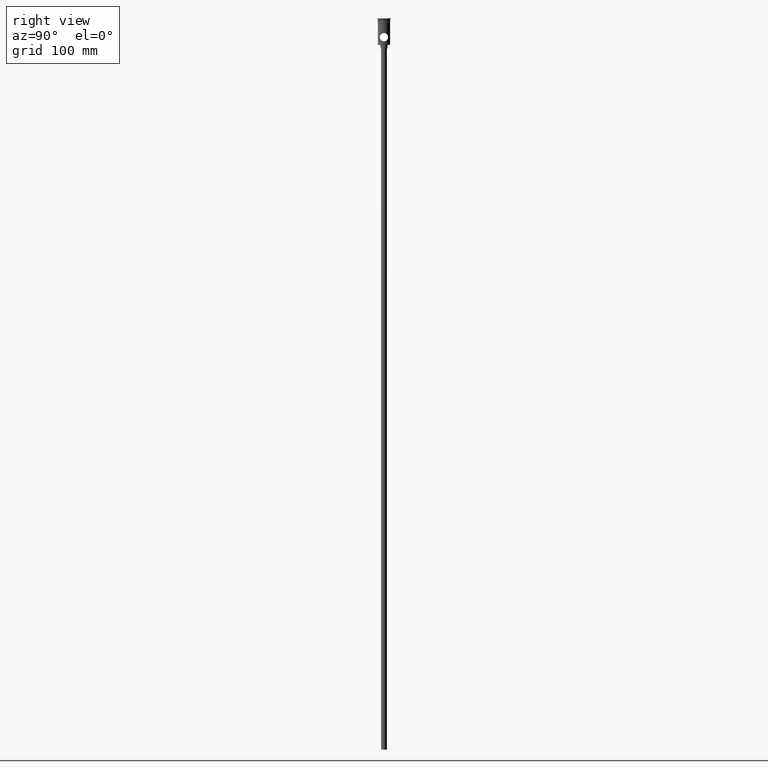
[diagram: clean part render]
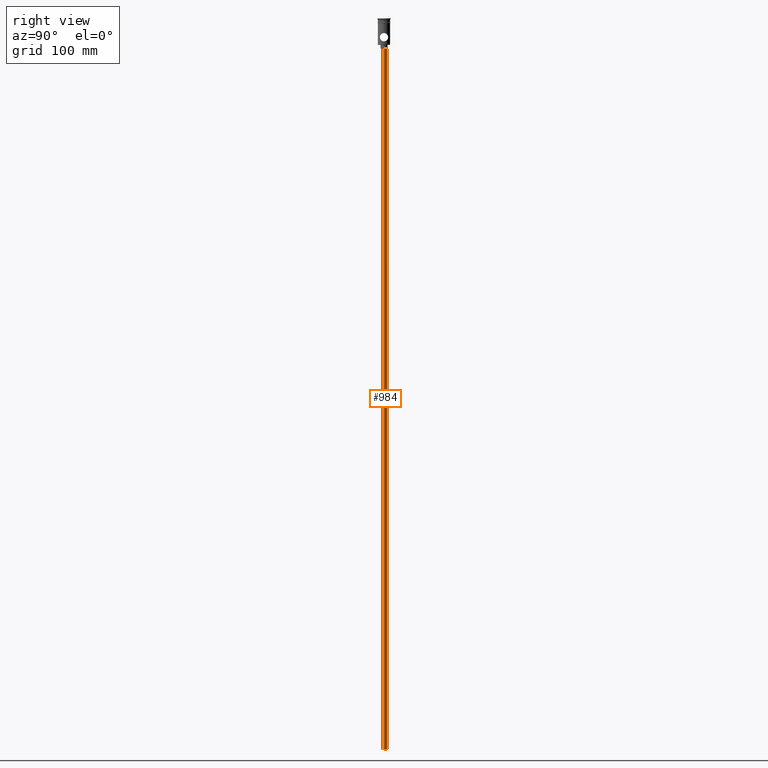
[diagram: same view with one face highlighted and labeled with its STEP entity id]
A machine part, right view. The second image highlights one B-rep face of the part: STEP entity #984.
In plain terms, the highlighted cylindrical surface (edge-blend (fillet) strip) has radius 2.5 mm, axis along (-0, -0, 1).
Its self-contained STEP definition (entity closure, byte-faithful):
#12 = LINE ( 'NONE', #493, #782 ) ;
#38 = AXIS2_PLACEMENT_3D ( 'NONE', #1191, #612, #972 ) ;
#47 = DIRECTION ( 'NONE',  ( -0.000000000000000000, -0.000000000000000000, 1.000000000000000000 ) ) ;
#54 = ORIENTED_EDGE ( 'NONE', *, *, #626, .F. ) ;
#100 = DIRECTION ( 'NONE',  ( 1.000000000000000000, 0.000000000000000000, 0.000000000000000000 ) ) ;
#200 = CARTESIAN_POINT ( 'NONE',  ( 2.500000000000000000, 0.000000000000000000, -622.4999999999998863 ) ) ;
#314 = EDGE_CURVE ( 'NONE', #344, #659, #578, .T. ) ;
#344 = VERTEX_POINT ( 'NONE', #1355 ) ;
#362 = CARTESIAN_POINT ( 'NONE',  ( 2.500000000000000000, 0.000000000000000000, -25.50000000000000000 ) ) ;
#491 = VERTEX_POINT ( 'NONE', #362 ) ;
#493 = CARTESIAN_POINT ( 'NONE',  ( -2.500000000000000000, 3.061616997868383141E-16, -622.4999999999998863 ) ) ;
#556 = EDGE_CURVE ( 'NONE', #1154, #491, #1035, .T. ) ;
#561 = VECTOR ( 'NONE', #1234, 1000.000000000000000 ) ;
#566 = CARTESIAN_POINT ( 'NONE',  ( 0.000000000000000000, 0.000000000000000000, -622.4999999999998863 ) ) ;
#578 = CIRCLE ( 'NONE', #1294, 2.500000000000000000 ) ;
#612 = DIRECTION ( 'NONE',  ( 0.000000000000000000, 0.000000000000000000, -1.000000000000000000 ) ) ;
#626 = EDGE_CURVE ( 'NONE', #659, #491, #793, .T. ) ;
#628 = AXIS2_PLACEMENT_3D ( 'NONE', #780, #1239, #100 ) ;
#637 = ORIENTED_EDGE ( 'NONE', *, *, #314, .F. ) ;
#659 = VERTEX_POINT ( 'NONE', #1246 ) ;
#691 = ORIENTED_EDGE ( 'NONE', *, *, #556, .T. ) ;
#704 = EDGE_LOOP ( 'NONE', ( #637, #908, #691, #54 ) ) ;
#765 = FACE_OUTER_BOUND ( 'NONE', #704, .T. ) ;
#780 = CARTESIAN_POINT ( 'NONE',  ( 0.000000000000000000, 0.000000000000000000, -622.4999999999998863 ) ) ;
#782 = VECTOR ( 'NONE', #47, 1000.000000000000000 ) ;
#793 = LINE ( 'NONE', #200, #561 ) ;
#807 = DIRECTION ( 'NONE',  ( -1.000000000000000000, 0.000000000000000000, 0.000000000000000000 ) ) ;
#908 = ORIENTED_EDGE ( 'NONE', *, *, #1311, .T. ) ;
#972 = DIRECTION ( 'NONE',  ( -1.000000000000000000, 0.000000000000000000, 0.000000000000000000 ) ) ;
#984 = ADVANCED_FACE ( 'NONE', ( #765 ), #1337, .T. ) ;
#1035 = CIRCLE ( 'NONE', #38, 2.500000000000000000 ) ;
#1154 = VERTEX_POINT ( 'NONE', #1400 ) ;
#1191 = CARTESIAN_POINT ( 'NONE',  ( 0.000000000000000000, 0.000000000000000000, -25.50000000000000000 ) ) ;
#1234 = DIRECTION ( 'NONE',  ( -0.000000000000000000, -0.000000000000000000, 1.000000000000000000 ) ) ;
#1239 = DIRECTION ( 'NONE',  ( -0.000000000000000000, -0.000000000000000000, 1.000000000000000000 ) ) ;
#1242 = DIRECTION ( 'NONE',  ( 0.000000000000000000, 0.000000000000000000, -1.000000000000000000 ) ) ;
#1246 = CARTESIAN_POINT ( 'NONE',  ( 2.500000000000000000, 0.000000000000000000, -622.4999999999998863 ) ) ;
#1294 = AXIS2_PLACEMENT_3D ( 'NONE', #566, #1242, #807 ) ;
#1311 = EDGE_CURVE ( 'NONE', #344, #1154, #12, .T. ) ;
#1337 = CYLINDRICAL_SURFACE ( 'NONE', #628, 2.500000000000000000 ) ;
#1355 = CARTESIAN_POINT ( 'NONE',  ( -2.500000000000000000, 3.061616997868383141E-16, -622.4999999999998863 ) ) ;
#1400 = CARTESIAN_POINT ( 'NONE',  ( -2.500000000000000000, 3.061616997868383141E-16, -25.50000000000000000 ) ) ;